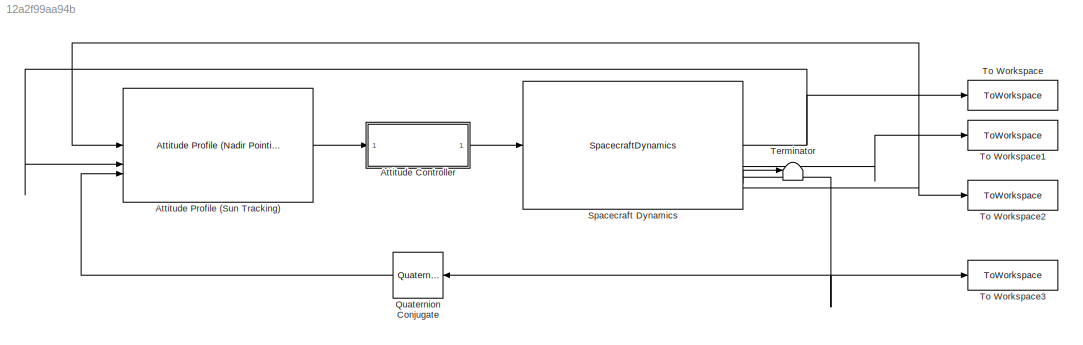
MODEL slx_12a2f99aa94b
KIND model
CONFIG AbsTol = 1e-7
CONFIG EnableMultiTasking = off
CONFIG FixedStep = auto
CONFIG MaxStep = 10
CONFIG MinStep = auto
CONFIG PreLoadFcn = % load('keplerianElements.mat');\n% startTime = datetime(2020,8,19,20,55,0); % 19 August 2020 8:55 PM UTC\n% stopTime = startTime + days(1);          % 20 August 2020 8:55 PM UTC\n% sampleTime = 60;   
CONFIG RelTol = 1e-7
CONFIG SampleTimeConstraint = Unconstrained
CONFIG SolverName = ode45
CONFIG StartTime = 0.0
CONFIG StopTime = 24*60*60
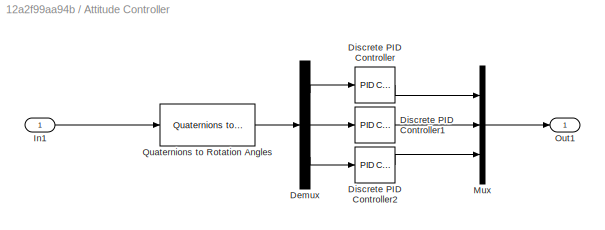
BLOCK [SubSystem] Attitude Controller
BLOCK [Demux] Attitude Controller/Demux
  Outputs = 3
BLOCK [Reference] Attitude Controller/Discrete PID Controller  REF=slpidlib/PID Controller
  LibrarySourceBlock = simulink/Discrete/Discrete PID Controller
  SourceBlock = slpidlib/PID Controller
  SourceType = PID 1dof
BLOCK [Reference] Attitude Controller/Discrete PID Controller1  REF=slpidlib/PID Controller
  LibrarySourceBlock = simulink/Discrete/Discrete PID Controller
  SourceBlock = slpidlib/PID Controller
  SourceType = PID 1dof
BLOCK [Reference] Attitude Controller/Discrete PID Controller2  REF=slpidlib/PID Controller
  LibrarySourceBlock = simulink/Discrete/Discrete PID Controller
  SourceBlock = slpidlib/PID Controller
  SourceType = PID 1dof
BLOCK [Inport] Attitude Controller/In1
BLOCK [Mux] Attitude Controller/Mux
  DisplayOption = bar
  Inputs = 3
BLOCK [Outport] Attitude Controller/Out1
BLOCK [Reference] Attitude Controller/Quaternions to Rotation Angles  REF=sharedtransform/Quaternions to Rotation Angles
  AttributesFormatString = Rotation Order: %<rotationOrder>
  LibrarySourceBlock = aerolibtransform2/Quaternions to Rotation Angles
  SourceBlock = sharedtransform/Quaternions to Rotation Angles
  SourceType = Quat2Ang
BLOCK [Reference] Attitude Profile (Sun Tracking)  REF=aerolibsatdyn/Attitude Profile
(Nadir Pointing)
  LibrarySourceBlock = aerolibsatdyn/Attitude Profile\n(Sun Tracking)
  SourceBlock = aerolibsatdyn/Attitude Profile\n(Nadir Pointing)
  SourceType = Attitude Profile
BLOCK [Reference] Quaternion Conjugate  REF=aerolibutil/Quaternion
Conjugate
  NameLocation = top
  SourceBlock = aerolibutil/Quaternion\nConjugate
  SourceType = Quaternion Conjugate
BLOCK [SpacecraftDynamics] Spacecraft Dynamics
  argPeriapsis = argumentOfPeriapsis
  eccentricity = eccentricity
  forcesIn = off
  inclination = inclination
  inertia = [1 0 0;0 1 0;0 0 1]
  mass = 1
  raan = rightAscensionOfAscendingNode
  semiMajorAxis = semiMajorAxis
  startDate = startTime
  trueAnomaly = trueAnomaly
BLOCK [Terminator] Terminator
BLOCK [ToWorkspace] To Workspace
  FixptAsFi = on
  MaxDataPoints = inf
  SampleTime = -1
  Save2DSignal = 2-D array (concatenate along first dimension)
  VariableName = positionData
BLOCK [ToWorkspace] To Workspace1
  FixptAsFi = on
  MaxDataPoints = inf
  SampleTime = -1
  Save2DSignal = 2-D array (concatenate along first dimension)
  VariableName = velocityData
BLOCK [ToWorkspace] To Workspace2
  FixptAsFi = on
  MaxDataPoints = inf
  SampleTime = -1
  Save2DSignal = 2-D array (concatenate along first dimension)
  VariableName = timeData
BLOCK [ToWorkspace] To Workspace3
  FixptAsFi = on
  MaxDataPoints = inf
  SampleTime = -1
  Save2DSignal = 2-D array (concatenate along first dimension)
  SaveFormat = Timeseries
  VariableName = quatData
LINE Attitude Controller/Demux:1 -> Attitude Controller/Discrete PID Controller:1
LINE Attitude Controller/Demux:2 -> Attitude Controller/Discrete PID Controller1:1
LINE Attitude Controller/Demux:3 -> Attitude Controller/Discrete PID Controller2:1
LINE Attitude Controller/Discrete PID Controller1:1 -> Attitude Controller/Mux:2
LINE Attitude Controller/Discrete PID Controller2:1 -> Attitude Controller/Mux:3
LINE Attitude Controller/Discrete PID Controller:1 -> Attitude Controller/Mux:1
LINE Attitude Controller/In1:1 -> Attitude Controller/Quaternions to Rotation Angles:1
LINE Attitude Controller/Mux:1 -> Attitude Controller/Out1:1
LINE Attitude Controller/Quaternions to Rotation Angles:1 -> Attitude Controller/Demux:1
LINE Attitude Controller:1 -> Spacecraft Dynamics:1
LINE Attitude Profile (Sun Tracking):1 -> Attitude Controller:1
LINE Quaternion Conjugate:1 -> Attitude Profile (Sun Tracking):3
NET Spacecraft Dynamics:1 -> Attitude Profile (Sun Tracking):2, To Workspace:1
LINE Spacecraft Dynamics:2 -> To Workspace1:1
NET Spacecraft Dynamics:3 -> Quaternion Conjugate:1, To Workspace3:1
LINE Spacecraft Dynamics:4 -> Terminator:1
NET Spacecraft Dynamics:5 -> Attitude Profile (Sun Tracking):1, To Workspace2:1
note: NET lines group one-source signal fan-out (src -> all destinations, sorted); 1:1 wires keep LINE
